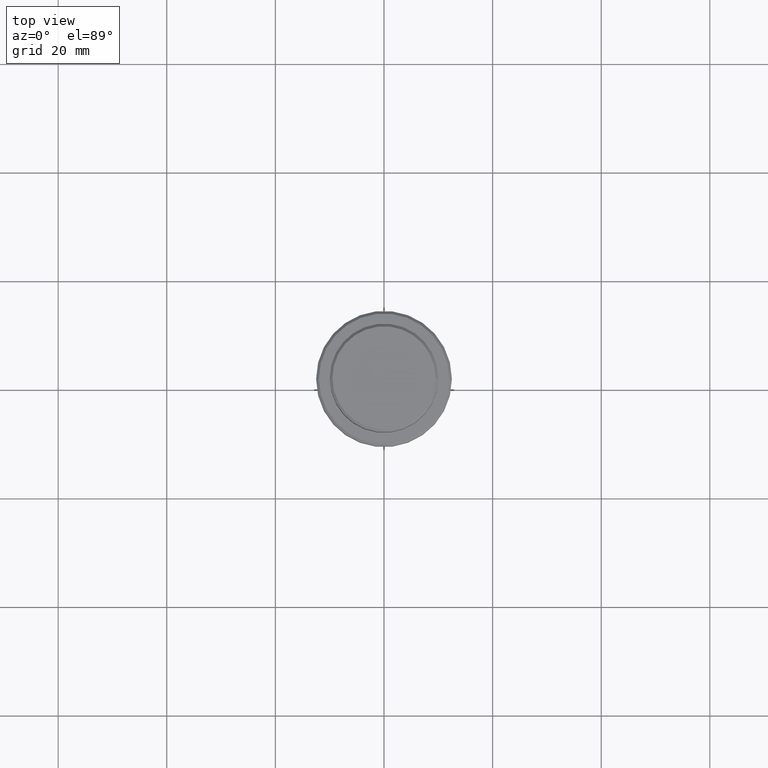
[diagram: clean part render]
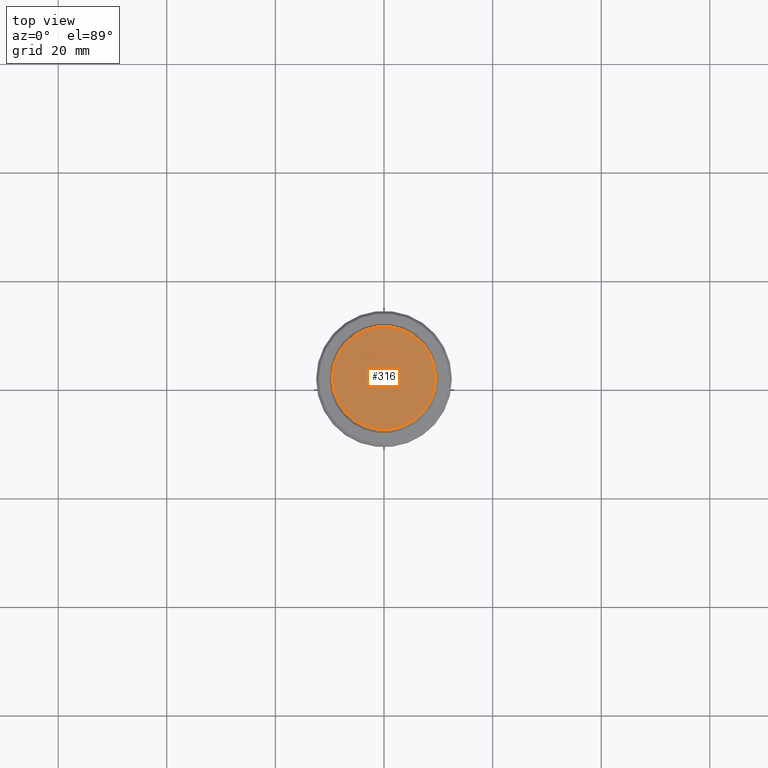
[diagram: same view with one face highlighted and labeled with its STEP entity id]
A machine part, top view. The second image highlights one B-rep face of the part: STEP entity #316.
In plain terms, the highlighted planar face has unit normal (0, -0, 1).
Its self-contained STEP definition (entity closure, byte-faithful):
#80 = CARTESIAN_POINT ( 'NONE',  ( -9.500000000000008882, 0.000000000000000000, 0.000000000000000000 ) ) ;
#204 = EDGE_CURVE ( 'NONE', #334, #1021, #243, .T. ) ;
#243 = CIRCLE ( 'NONE', #447, 9.500000000000008882 ) ;
#294 = ORIENTED_EDGE ( 'NONE', *, *, #457, .T. ) ;
#316 = ADVANCED_FACE ( 'NONE', ( #1020 ), #708, .T. ) ;
#330 = DIRECTION ( 'NONE',  ( -0.000000000000000000, -0.000000000000000000, 1.000000000000000000 ) ) ;
#334 = VERTEX_POINT ( 'NONE', #1227 ) ;
#447 = AXIS2_PLACEMENT_3D ( 'NONE', #1330, #639, #463 ) ;
#457 = EDGE_CURVE ( 'NONE', #1021, #334, #613, .T. ) ;
#463 = DIRECTION ( 'NONE',  ( 1.000000000000000000, 0.000000000000000000, 0.000000000000000000 ) ) ;
#613 = CIRCLE ( 'NONE', #1006, 9.500000000000008882 ) ;
#639 = DIRECTION ( 'NONE',  ( -0.000000000000000000, -0.000000000000000000, 1.000000000000000000 ) ) ;
#646 = EDGE_LOOP ( 'NONE', ( #294, #868 ) ) ;
#653 = AXIS2_PLACEMENT_3D ( 'NONE', #689, #1014, #1347 ) ;
#689 = CARTESIAN_POINT ( 'NONE',  ( 0.000000000000000000, 0.000000000000000000, 0.000000000000000000 ) ) ;
#708 = PLANE ( 'NONE',  #653 ) ;
#868 = ORIENTED_EDGE ( 'NONE', *, *, #204, .T. ) ;
#1006 = AXIS2_PLACEMENT_3D ( 'NONE', #1177, #330, #1167 ) ;
#1014 = DIRECTION ( 'NONE',  ( 0.000000000000000000, -0.000000000000000000, 1.000000000000000000 ) ) ;
#1020 = FACE_OUTER_BOUND ( 'NONE', #646, .T. ) ;
#1021 = VERTEX_POINT ( 'NONE', #80 ) ;
#1167 = DIRECTION ( 'NONE',  ( 1.000000000000000000, 0.000000000000000000, 0.000000000000000000 ) ) ;
#1177 = CARTESIAN_POINT ( 'NONE',  ( 0.000000000000000000, 0.000000000000000000, 0.000000000000000000 ) ) ;
#1227 = CARTESIAN_POINT ( 'NONE',  ( 9.500000000000008882, 1.194030629168669864E-15, 0.000000000000000000 ) ) ;
#1330 = CARTESIAN_POINT ( 'NONE',  ( 0.000000000000000000, 0.000000000000000000, 0.000000000000000000 ) ) ;
#1347 = DIRECTION ( 'NONE',  ( 1.000000000000000000, 0.000000000000000000, 0.000000000000000000 ) ) ;